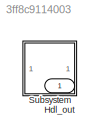
MODEL slx_3ff8c9114003
KIND model
CONFIG AbsTol = auto
CONFIG EnableMultiTasking = off
CONFIG FixedStep = auto
CONFIG MaxStep = auto
CONFIG MinStep = auto
CONFIG RelTol = 1e-3
CONFIG SampleTimeConstraint = Unconstrained
CONFIG SolverName = VariableStepAuto
CONFIG StartTime = 0.0
CONFIG StopTime = 10.0
BLOCK [Outport] Hdl_out
  OutDataTypeStr = uint8
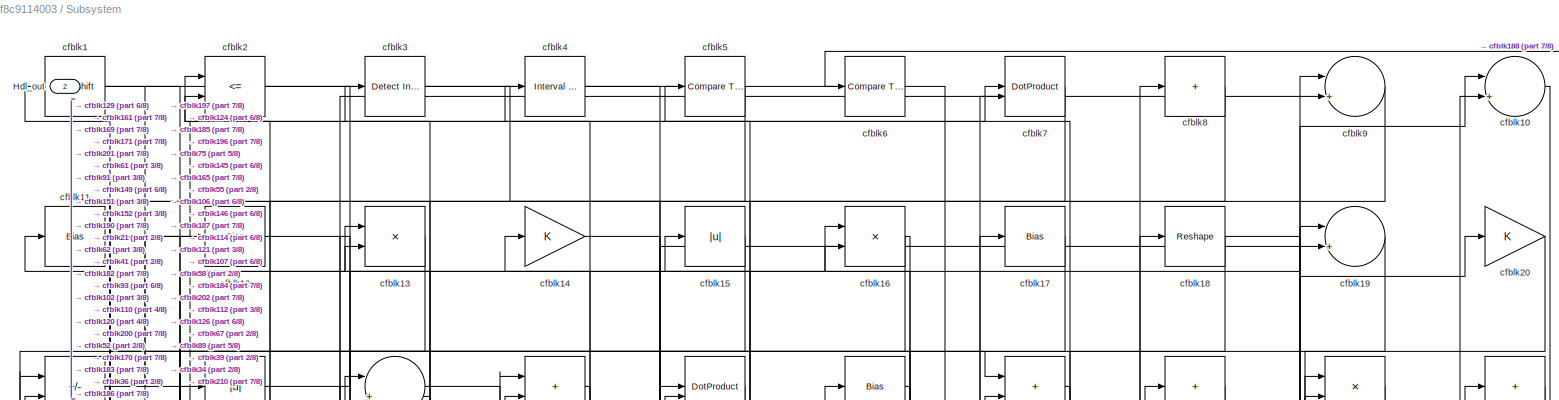
[diagram: Subsystem - part 1/8, full width, top band]
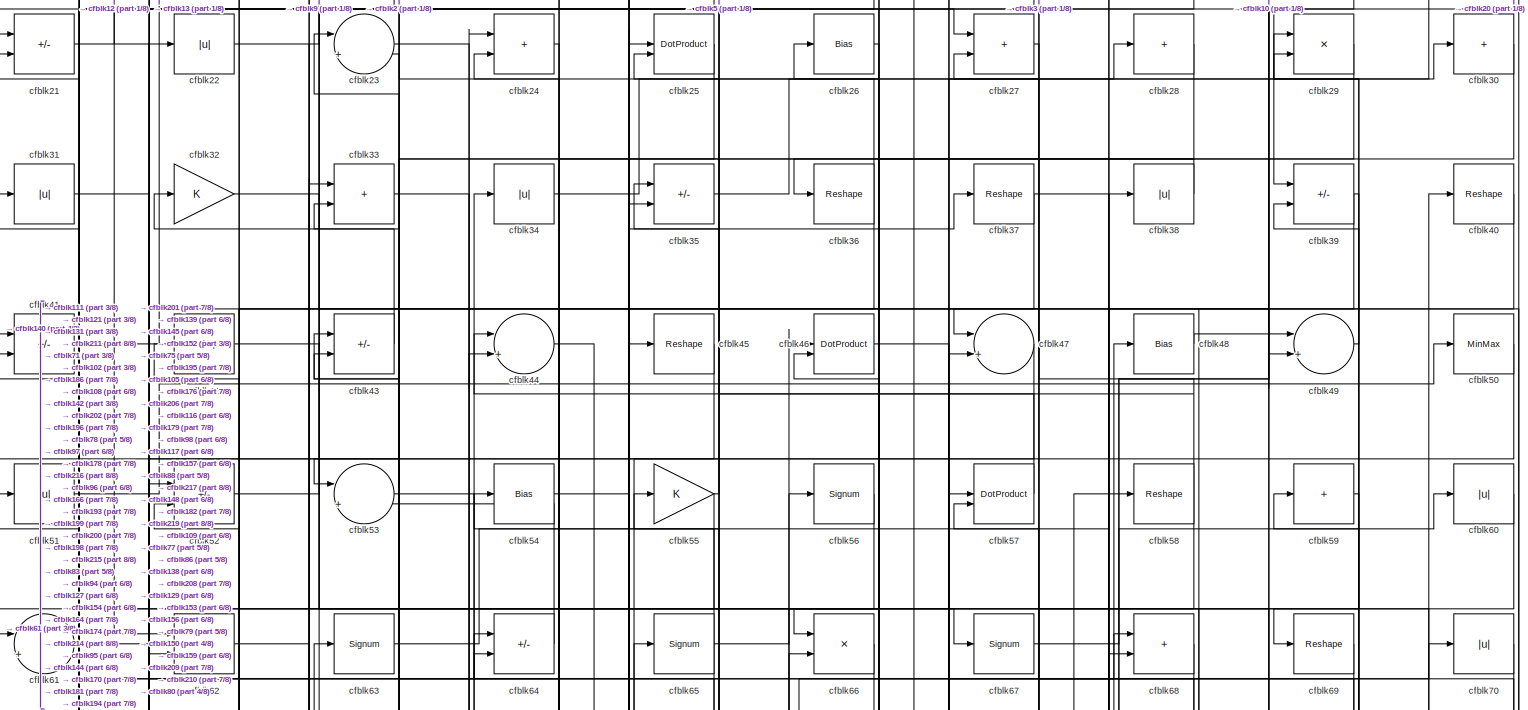
[diagram: Subsystem - part 2/8, full width, top band]
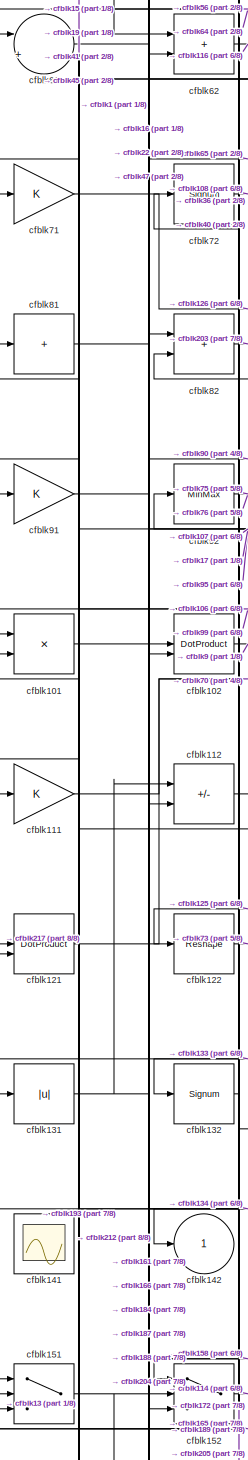
[diagram: Subsystem - part 3/8, middle left region]
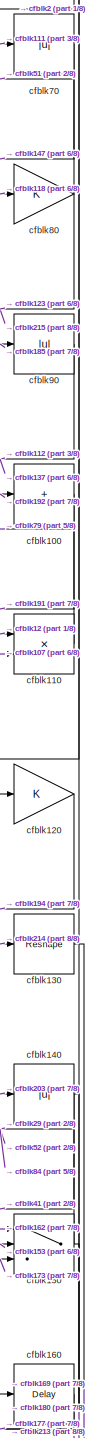
[diagram: Subsystem - part 4/8, middle right region]
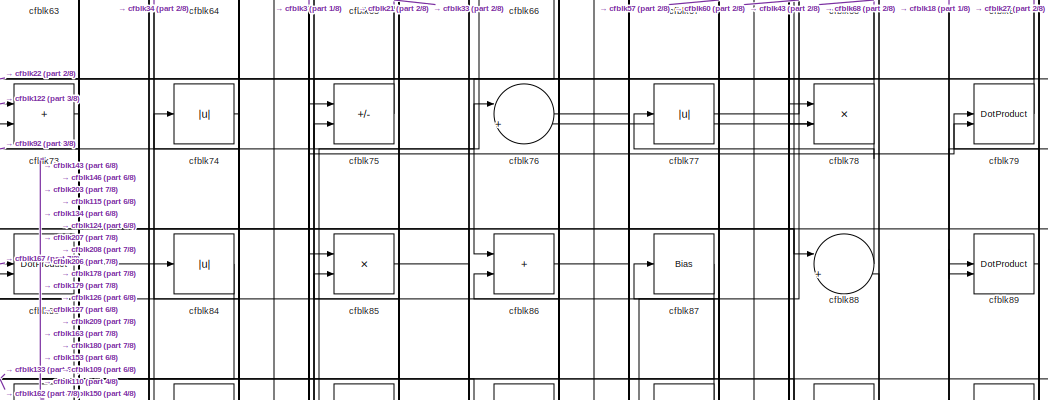
[diagram: Subsystem - part 5/8, central region]
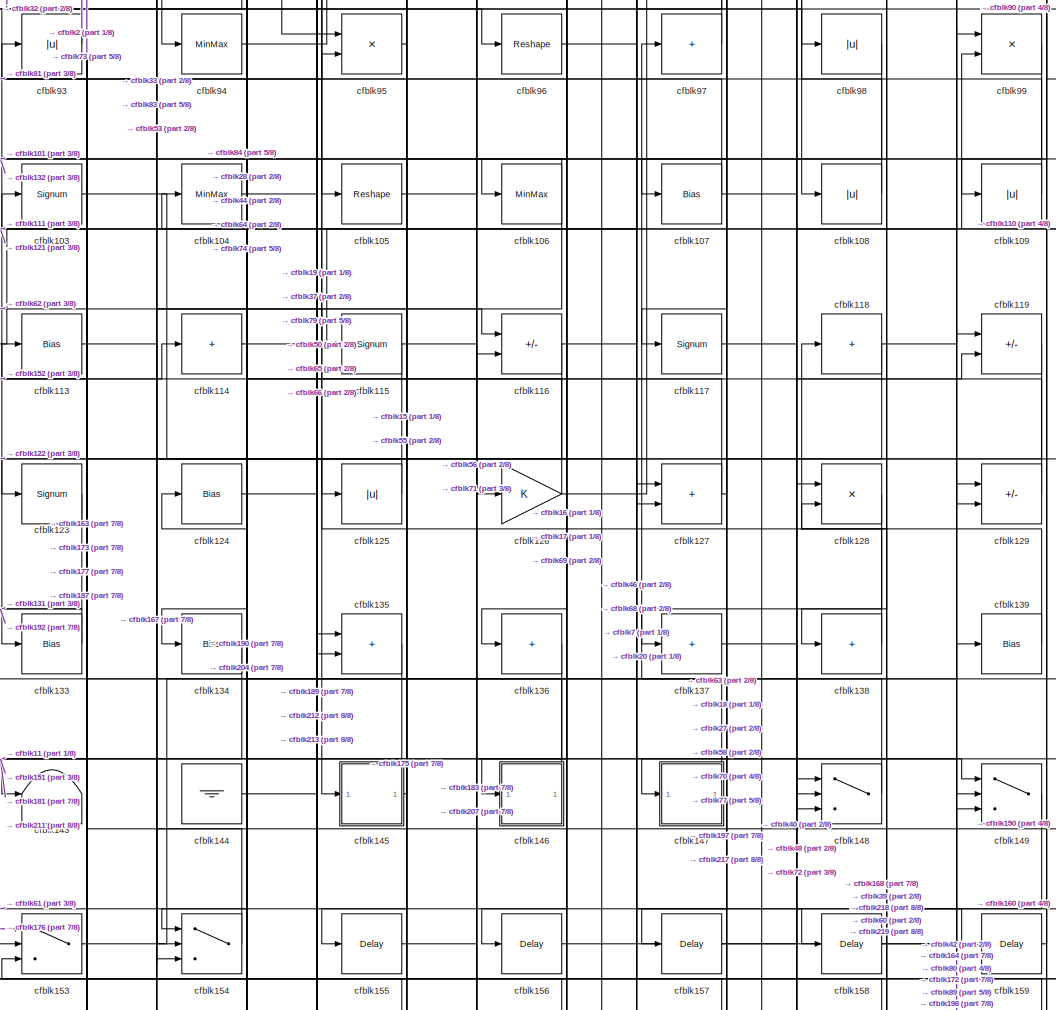
[diagram: Subsystem - part 6/8, central region]
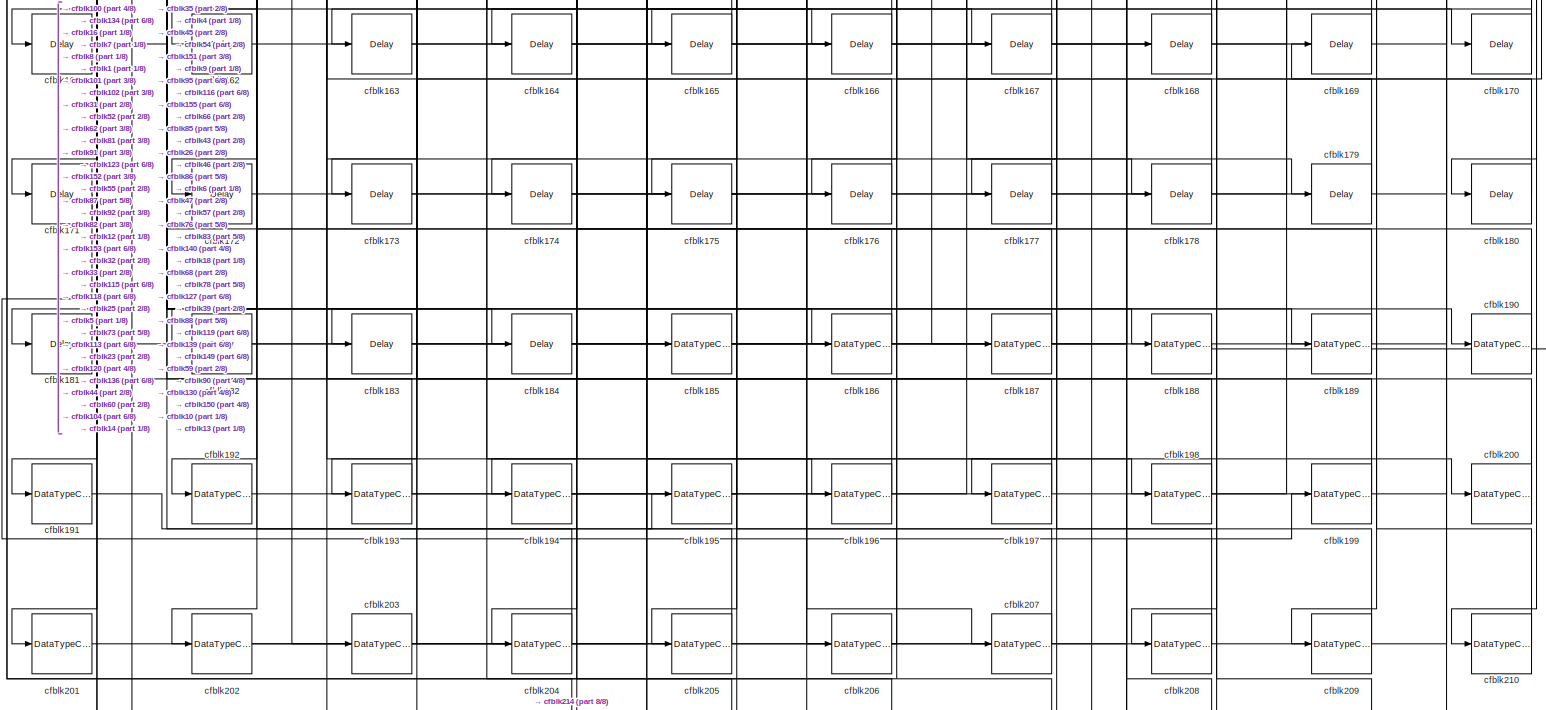
[diagram: Subsystem - part 7/8, full width, bottom band]
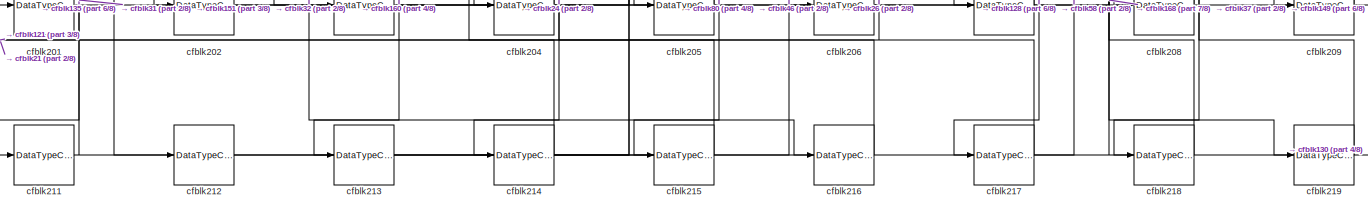
[diagram: Subsystem - part 8/8, full width, bottom band]
BLOCK [SubSystem] Subsystem
BLOCK [Outport] Subsystem/Hdl_out
  OutDataTypeStr = uint8
  Port = 2
BLOCK [ArithShift] Subsystem/cfblk1
  BitShiftNumber = 8
  InputPortMap = u0
BLOCK [Sum] Subsystem/cfblk10
  Inputs = |++
  OutDataTypeStr = uint8
BLOCK [Sum] Subsystem/cfblk100
  IconShape = rectangular
  Inputs = +
  OutDataTypeStr = uint8
BLOCK [Product] Subsystem/cfblk101
  Inputs = */
  OutDataTypeStr = uint8
  RndMeth = Zero
  SaturateOnIntegerOverflow = on
BLOCK [DotProduct] Subsystem/cfblk102
  OutDataTypeStr = uint8
BLOCK [Signum] Subsystem/cfblk103
BLOCK [MinMax] Subsystem/cfblk104
  OutDataTypeStr = uint8
BLOCK [Reshape] Subsystem/cfblk105
BLOCK [MinMax] Subsystem/cfblk106
  OutDataTypeStr = uint8
BLOCK [Bias] Subsystem/cfblk107
  Bias = 0.0
  SaturateOnIntegerOverflow = off
BLOCK [Abs] Subsystem/cfblk108
  OutDataTypeStr = uint8
  SaturateOnIntegerOverflow = off
BLOCK [Abs] Subsystem/cfblk109
  OutDataTypeStr = uint8
  SaturateOnIntegerOverflow = off
BLOCK [Bias] Subsystem/cfblk11
  Bias = 0.0
  SaturateOnIntegerOverflow = off
BLOCK [Product] Subsystem/cfblk110
  Inputs = */
  OutDataTypeStr = uint8
  RndMeth = Zero
  SaturateOnIntegerOverflow = on
BLOCK [Gain] Subsystem/cfblk111
  OutDataTypeStr = uint8
BLOCK [Sum] Subsystem/cfblk112
  IconShape = rectangular
  Inputs = +-
  OutDataTypeStr = uint8
BLOCK [Bias] Subsystem/cfblk113
  Bias = 0.0
  SaturateOnIntegerOverflow = off
BLOCK [Sum] Subsystem/cfblk114
  IconShape = rectangular
  Inputs = +
  OutDataTypeStr = uint8
BLOCK [Signum] Subsystem/cfblk115
BLOCK [Sum] Subsystem/cfblk116
  IconShape = rectangular
  Inputs = +-
  OutDataTypeStr = uint8
BLOCK [Signum] Subsystem/cfblk117
BLOCK [Sum] Subsystem/cfblk118
  IconShape = rectangular
  Inputs = +
  OutDataTypeStr = uint8
BLOCK [Sum] Subsystem/cfblk119
  IconShape = rectangular
  Inputs = +-
  OutDataTypeStr = uint8
BLOCK [Bias] Subsystem/cfblk12
  Bias = 0.0
  SaturateOnIntegerOverflow = off
BLOCK [Gain] Subsystem/cfblk120
  OutDataTypeStr = uint8
BLOCK [DotProduct] Subsystem/cfblk121
  OutDataTypeStr = uint8
BLOCK [Reshape] Subsystem/cfblk122
BLOCK [Signum] Subsystem/cfblk123
BLOCK [Bias] Subsystem/cfblk124
  Bias = 0.0
  SaturateOnIntegerOverflow = off
BLOCK [Abs] Subsystem/cfblk125
  OutDataTypeStr = uint8
  SaturateOnIntegerOverflow = off
BLOCK [Gain] Subsystem/cfblk126
  OutDataTypeStr = uint8
BLOCK [Sum] Subsystem/cfblk127
  IconShape = rectangular
  OutDataTypeStr = uint8
BLOCK [Product] Subsystem/cfblk128
  Inputs = */
  OutDataTypeStr = uint8
  RndMeth = Zero
  SaturateOnIntegerOverflow = on
BLOCK [Sum] Subsystem/cfblk129
  IconShape = rectangular
  Inputs = +-
  OutDataTypeStr = uint8
BLOCK [Product] Subsystem/cfblk13
  Inputs = */
  OutDataTypeStr = uint8
  RndMeth = Zero
  SaturateOnIntegerOverflow = on
BLOCK [Reshape] Subsystem/cfblk130
BLOCK [Abs] Subsystem/cfblk131
  OutDataTypeStr = uint8
  SaturateOnIntegerOverflow = off
BLOCK [Signum] Subsystem/cfblk132
BLOCK [Bias] Subsystem/cfblk133
  Bias = 0.0
  SaturateOnIntegerOverflow = off
BLOCK [Bias] Subsystem/cfblk134
  Bias = 0.0
  SaturateOnIntegerOverflow = off
BLOCK [Sum] Subsystem/cfblk135
  IconShape = rectangular
  OutDataTypeStr = uint8
BLOCK [Sum] Subsystem/cfblk136
  IconShape = rectangular
  Inputs = +
  OutDataTypeStr = uint8
BLOCK [Sum] Subsystem/cfblk137
  IconShape = rectangular
  Inputs = +
  OutDataTypeStr = uint8
BLOCK [Sum] Subsystem/cfblk138
  IconShape = rectangular
  Inputs = +
  OutDataTypeStr = uint8
BLOCK [Bias] Subsystem/cfblk139
  Bias = 0.0
  SaturateOnIntegerOverflow = off
BLOCK [Gain] Subsystem/cfblk14
  OutDataTypeStr = uint8
BLOCK [Abs] Subsystem/cfblk140
  OutDataTypeStr = uint8
  SaturateOnIntegerOverflow = off
BLOCK [Scope] Subsystem/cfblk141
  Floating = on
  NumInputPorts = 1
  ScopeSpecificationString = Simulink.scopes.TimeScopeBlockCfg('CurrentConfiguration', extmgr.ConfigurationSet(extmgr.Configuration('Core','General UI',true,'FigureColor',[0.156862745098039 0.156862745098039 0.156862745098039]),extmgr.Configuration('Core','Source UI',true),extmgr.Configuration('Sources','WiredSimulink',true,'DataLoggingSaveFormat','StructureWithTime','DataLoggingLimitDataPoints',true,'DataLoggingDecimation','...<+2674ch>
BLOCK [Outport] Subsystem/cfblk142
  OutDataTypeStr = uint8
  VectorParamsAs1DForOutWhenUnconnected = off
BLOCK [Terminator] Subsystem/cfblk143
BLOCK [Ground] Subsystem/cfblk144
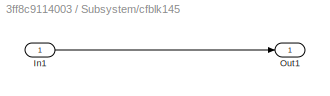
BLOCK [SubSystem] Subsystem/cfblk145
  LibrarySourceBlock = hdlsllib/Ports &\nSubsystems/Subsystem
BLOCK [Inport] Subsystem/cfblk145/In1
BLOCK [Outport] Subsystem/cfblk145/Out1
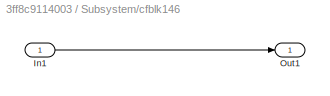
BLOCK [SubSystem] Subsystem/cfblk146
  LibrarySourceBlock = hdlsllib/Ports &\nSubsystems/Subsystem
BLOCK [Inport] Subsystem/cfblk146/In1
BLOCK [Outport] Subsystem/cfblk146/Out1
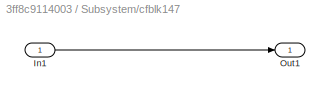
BLOCK [SubSystem] Subsystem/cfblk147
  LibrarySourceBlock = hdlsllib/Ports &\nSubsystems/Subsystem
BLOCK [Inport] Subsystem/cfblk147/In1
BLOCK [Outport] Subsystem/cfblk147/Out1
BLOCK [Switch] Subsystem/cfblk148
  InputSameDT = off
  OutDataTypeStr = uint8
  SaturateOnIntegerOverflow = off
BLOCK [Switch] Subsystem/cfblk149
  InputSameDT = off
  OutDataTypeStr = uint8
  SaturateOnIntegerOverflow = off
BLOCK [Abs] Subsystem/cfblk15
  OutDataTypeStr = uint8
  SaturateOnIntegerOverflow = off
BLOCK [Switch] Subsystem/cfblk150
  InputSameDT = off
  OutDataTypeStr = uint8
  SaturateOnIntegerOverflow = off
BLOCK [Switch] Subsystem/cfblk151
  InputSameDT = off
  OutDataTypeStr = uint8
  SaturateOnIntegerOverflow = off
BLOCK [Switch] Subsystem/cfblk152
  InputSameDT = off
  OutDataTypeStr = uint8
  SaturateOnIntegerOverflow = off
BLOCK [Switch] Subsystem/cfblk153
  InputSameDT = off
  OutDataTypeStr = uint8
  SaturateOnIntegerOverflow = off
BLOCK [Switch] Subsystem/cfblk154
  InputSameDT = off
  OutDataTypeStr = uint8
  SaturateOnIntegerOverflow = off
BLOCK [Delay] Subsystem/cfblk155
  InputPortMap = u0
  SampleTime = 1
BLOCK [Delay] Subsystem/cfblk156
  InputPortMap = u0
  SampleTime = 1
BLOCK [Delay] Subsystem/cfblk157
  InputPortMap = u0
  SampleTime = 1
BLOCK [Delay] Subsystem/cfblk158
  InputPortMap = u0
  SampleTime = 1
BLOCK [Delay] Subsystem/cfblk159
  InputPortMap = u0
  SampleTime = 1
BLOCK [Product] Subsystem/cfblk16
  Inputs = */
  OutDataTypeStr = uint8
  RndMeth = Zero
  SaturateOnIntegerOverflow = on
BLOCK [Delay] Subsystem/cfblk160
  InputPortMap = u0
  SampleTime = 1
BLOCK [Delay] Subsystem/cfblk161
  InputPortMap = u0
  SampleTime = 1
BLOCK [Delay] Subsystem/cfblk162
  InputPortMap = u0
  SampleTime = 1
BLOCK [Delay] Subsystem/cfblk163
  InputPortMap = u0
  SampleTime = 1
BLOCK [Delay] Subsystem/cfblk164
  InputPortMap = u0
  SampleTime = 1
BLOCK [Delay] Subsystem/cfblk165
  InputPortMap = u0
  SampleTime = 1
BLOCK [Delay] Subsystem/cfblk166
  InputPortMap = u0
  SampleTime = 1
BLOCK [Delay] Subsystem/cfblk167
  InputPortMap = u0
  SampleTime = 1
BLOCK [Delay] Subsystem/cfblk168
  InputPortMap = u0
  SampleTime = 1
BLOCK [Delay] Subsystem/cfblk169
  InputPortMap = u0
  SampleTime = 1
BLOCK [Bias] Subsystem/cfblk17
  Bias = 0.0
  SaturateOnIntegerOverflow = off
BLOCK [Delay] Subsystem/cfblk170
  InputPortMap = u0
  SampleTime = 1
BLOCK [Delay] Subsystem/cfblk171
  InputPortMap = u0
  SampleTime = 1
BLOCK [Delay] Subsystem/cfblk172
  InputPortMap = u0
  SampleTime = 1
BLOCK [Delay] Subsystem/cfblk173
  InputPortMap = u0
  SampleTime = 1
BLOCK [Delay] Subsystem/cfblk174
  InputPortMap = u0
  SampleTime = 1
BLOCK [Delay] Subsystem/cfblk175
  InputPortMap = u0
  SampleTime = 1
BLOCK [Delay] Subsystem/cfblk176
  InputPortMap = u0
  SampleTime = 1
BLOCK [Delay] Subsystem/cfblk177
  InputPortMap = u0
  SampleTime = 1
BLOCK [Delay] Subsystem/cfblk178
  InputPortMap = u0
  SampleTime = 1
BLOCK [Delay] Subsystem/cfblk179
  InputPortMap = u0
  SampleTime = 1
BLOCK [Reshape] Subsystem/cfblk18
BLOCK [Delay] Subsystem/cfblk180
  InputPortMap = u0
  SampleTime = 1
BLOCK [Delay] Subsystem/cfblk181
  InputPortMap = u0
  SampleTime = 1
BLOCK [Delay] Subsystem/cfblk182
  InputPortMap = u0
  SampleTime = 1
BLOCK [Delay] Subsystem/cfblk183
  InputPortMap = u0
  SampleTime = 1
BLOCK [Delay] Subsystem/cfblk184
  InputPortMap = u0
  SampleTime = 1
BLOCK [DataTypeConversion] Subsystem/cfblk185
  OutDataTypeStr = uint8
  RndMeth = Floor
  SaturateOnIntegerOverflow = off
BLOCK [DataTypeConversion] Subsystem/cfblk186
  OutDataTypeStr = uint8
  RndMeth = Floor
  SaturateOnIntegerOverflow = off
BLOCK [DataTypeConversion] Subsystem/cfblk187
  OutDataTypeStr = uint8
  RndMeth = Floor
  SaturateOnIntegerOverflow = off
BLOCK [DataTypeConversion] Subsystem/cfblk188
  OutDataTypeStr = uint8
  RndMeth = Floor
  SaturateOnIntegerOverflow = off
BLOCK [DataTypeConversion] Subsystem/cfblk189
  OutDataTypeStr = uint8
  RndMeth = Floor
  SaturateOnIntegerOverflow = off
BLOCK [Sum] Subsystem/cfblk19
  Inputs = |++
  OutDataTypeStr = uint8
BLOCK [DataTypeConversion] Subsystem/cfblk190
  OutDataTypeStr = uint8
  RndMeth = Floor
  SaturateOnIntegerOverflow = off
BLOCK [DataTypeConversion] Subsystem/cfblk191
  OutDataTypeStr = uint8
  RndMeth = Floor
  SaturateOnIntegerOverflow = off
BLOCK [DataTypeConversion] Subsystem/cfblk192
  OutDataTypeStr = uint8
  RndMeth = Floor
  SaturateOnIntegerOverflow = off
BLOCK [DataTypeConversion] Subsystem/cfblk193
  OutDataTypeStr = uint8
  RndMeth = Floor
  SaturateOnIntegerOverflow = off
BLOCK [DataTypeConversion] Subsystem/cfblk194
  OutDataTypeStr = uint8
  RndMeth = Floor
  SaturateOnIntegerOverflow = off
BLOCK [DataTypeConversion] Subsystem/cfblk195
  OutDataTypeStr = uint8
  RndMeth = Floor
  SaturateOnIntegerOverflow = off
BLOCK [DataTypeConversion] Subsystem/cfblk196
  OutDataTypeStr = uint8
  RndMeth = Floor
  SaturateOnIntegerOverflow = off
BLOCK [DataTypeConversion] Subsystem/cfblk197
  OutDataTypeStr = uint8
  RndMeth = Floor
  SaturateOnIntegerOverflow = off
BLOCK [DataTypeConversion] Subsystem/cfblk198
  OutDataTypeStr = uint8
  RndMeth = Floor
  SaturateOnIntegerOverflow = off
BLOCK [DataTypeConversion] Subsystem/cfblk199
  OutDataTypeStr = uint8
  RndMeth = Floor
  SaturateOnIntegerOverflow = off
BLOCK [RelationalOperator] Subsystem/cfblk2
  InputSameDT = off
  Operator = <=
  OutDataTypeStr = boolean
BLOCK [Gain] Subsystem/cfblk20
  OutDataTypeStr = uint8
BLOCK [DataTypeConversion] Subsystem/cfblk200
  OutDataTypeStr = uint8
  RndMeth = Floor
  SaturateOnIntegerOverflow = off
BLOCK [DataTypeConversion] Subsystem/cfblk201
  OutDataTypeStr = uint8
  RndMeth = Floor
  SaturateOnIntegerOverflow = off
BLOCK [DataTypeConversion] Subsystem/cfblk202
  OutDataTypeStr = uint8
  RndMeth = Floor
  SaturateOnIntegerOverflow = off
BLOCK [DataTypeConversion] Subsystem/cfblk203
  OutDataTypeStr = uint8
  RndMeth = Floor
  SaturateOnIntegerOverflow = off
BLOCK [DataTypeConversion] Subsystem/cfblk204
  OutDataTypeStr = uint8
  RndMeth = Floor
  SaturateOnIntegerOverflow = off
BLOCK [DataTypeConversion] Subsystem/cfblk205
  OutDataTypeStr = uint8
  RndMeth = Floor
  SaturateOnIntegerOverflow = off
BLOCK [DataTypeConversion] Subsystem/cfblk206
  OutDataTypeStr = uint8
  RndMeth = Floor
  SaturateOnIntegerOverflow = off
BLOCK [DataTypeConversion] Subsystem/cfblk207
  OutDataTypeStr = uint8
  RndMeth = Floor
  SaturateOnIntegerOverflow = off
BLOCK [DataTypeConversion] Subsystem/cfblk208
  OutDataTypeStr = uint8
  RndMeth = Floor
  SaturateOnIntegerOverflow = off
BLOCK [DataTypeConversion] Subsystem/cfblk209
  OutDataTypeStr = uint8
  RndMeth = Floor
  SaturateOnIntegerOverflow = off
BLOCK [Sum] Subsystem/cfblk21
  IconShape = rectangular
  Inputs = +-
  OutDataTypeStr = uint8
BLOCK [DataTypeConversion] Subsystem/cfblk210
  OutDataTypeStr = uint8
  RndMeth = Floor
  SaturateOnIntegerOverflow = off
BLOCK [DataTypeConversion] Subsystem/cfblk211
  OutDataTypeStr = uint8
  RndMeth = Floor
  SaturateOnIntegerOverflow = off
BLOCK [DataTypeConversion] Subsystem/cfblk212
  OutDataTypeStr = uint8
  RndMeth = Floor
  SaturateOnIntegerOverflow = off
BLOCK [DataTypeConversion] Subsystem/cfblk213
  OutDataTypeStr = uint8
  RndMeth = Floor
  SaturateOnIntegerOverflow = off
BLOCK [DataTypeConversion] Subsystem/cfblk214
  OutDataTypeStr = uint8
  RndMeth = Floor
  SaturateOnIntegerOverflow = off
BLOCK [DataTypeConversion] Subsystem/cfblk215
  OutDataTypeStr = uint8
  RndMeth = Floor
  SaturateOnIntegerOverflow = off
BLOCK [DataTypeConversion] Subsystem/cfblk216
  OutDataTypeStr = uint8
  RndMeth = Floor
  SaturateOnIntegerOverflow = off
BLOCK [DataTypeConversion] Subsystem/cfblk217
  OutDataTypeStr = uint8
  RndMeth = Floor
  SaturateOnIntegerOverflow = off
BLOCK [DataTypeConversion] Subsystem/cfblk218
  OutDataTypeStr = uint8
  RndMeth = Floor
  SaturateOnIntegerOverflow = off
BLOCK [DataTypeConversion] Subsystem/cfblk219
  OutDataTypeStr = uint8
  RndMeth = Floor
  SaturateOnIntegerOverflow = off
BLOCK [Abs] Subsystem/cfblk22
  OutDataTypeStr = uint8
  SaturateOnIntegerOverflow = off
BLOCK [Sum] Subsystem/cfblk23
  Inputs = |++
  OutDataTypeStr = uint8
BLOCK [Sum] Subsystem/cfblk24
  IconShape = rectangular
  OutDataTypeStr = uint8
BLOCK [DotProduct] Subsystem/cfblk25
  OutDataTypeStr = uint8
BLOCK [Bias] Subsystem/cfblk26
  Bias = 0.0
  SaturateOnIntegerOverflow = off
BLOCK [Sum] Subsystem/cfblk27
  IconShape = rectangular
  OutDataTypeStr = uint8
BLOCK [Sum] Subsystem/cfblk28
  IconShape = rectangular
  Inputs = +
  OutDataTypeStr = uint8
BLOCK [Product] Subsystem/cfblk29
  Inputs = */
  OutDataTypeStr = uint8
  RndMeth = Zero
  SaturateOnIntegerOverflow = on
BLOCK [Reference] Subsystem/cfblk3  REF=simulink/Logic and Bit
Operations/Detect
Increase
  LibrarySourceBlock = hdlsllib/Logic and Bit\nOperations/Detect\nIncrease
  SourceBlock = simulink/Logic and Bit\nOperations/Detect\nIncrease
  SourceType = Detect Increase
BLOCK [Sum] Subsystem/cfblk30
  IconShape = rectangular
  Inputs = +
  OutDataTypeStr = uint8
BLOCK [Abs] Subsystem/cfblk31
  OutDataTypeStr = uint8
  SaturateOnIntegerOverflow = off
BLOCK [Gain] Subsystem/cfblk32
  OutDataTypeStr = uint8
BLOCK [Sum] Subsystem/cfblk33
  IconShape = rectangular
  OutDataTypeStr = uint8
BLOCK [Abs] Subsystem/cfblk34
  OutDataTypeStr = uint8
  SaturateOnIntegerOverflow = off
BLOCK [Sum] Subsystem/cfblk35
  IconShape = rectangular
  Inputs = +-
  OutDataTypeStr = uint8
BLOCK [Reshape] Subsystem/cfblk36
BLOCK [Reshape] Subsystem/cfblk37
BLOCK [Abs] Subsystem/cfblk38
  OutDataTypeStr = uint8
  SaturateOnIntegerOverflow = off
BLOCK [Sum] Subsystem/cfblk39
  IconShape = rectangular
  Inputs = +-
  OutDataTypeStr = uint8
BLOCK [Reference] Subsystem/cfblk4  REF=hdlsllib/Logic and Bit
Operations/Interval Test
  SourceBlock = hdlsllib/Logic and Bit\nOperations/Interval Test
  SourceType = Interval Test
BLOCK [Reshape] Subsystem/cfblk40
BLOCK [Sum] Subsystem/cfblk41
  IconShape = rectangular
  Inputs = +-
  OutDataTypeStr = uint8
BLOCK [Reshape] Subsystem/cfblk42
BLOCK [Sum] Subsystem/cfblk43
  IconShape = rectangular
  Inputs = +-
  OutDataTypeStr = uint8
BLOCK [Sum] Subsystem/cfblk44
  Inputs = |++
  OutDataTypeStr = uint8
BLOCK [Reshape] Subsystem/cfblk45
BLOCK [DotProduct] Subsystem/cfblk46
  OutDataTypeStr = uint8
BLOCK [Sum] Subsystem/cfblk47
  Inputs = |++
  OutDataTypeStr = uint8
BLOCK [Bias] Subsystem/cfblk48
  Bias = 0.0
  SaturateOnIntegerOverflow = off
BLOCK [Sum] Subsystem/cfblk49
  Inputs = |++
  OutDataTypeStr = uint8
BLOCK [Reference] Subsystem/cfblk5  REF=hdlsllib/Logic and Bit
Operations/Compare
To Constant
  SourceBlock = hdlsllib/Logic and Bit\nOperations/Compare\nTo Constant
  SourceType = Compare To Constant
BLOCK [MinMax] Subsystem/cfblk50
  OutDataTypeStr = uint8
BLOCK [Abs] Subsystem/cfblk51
  OutDataTypeStr = uint8
  SaturateOnIntegerOverflow = off
BLOCK [Sum] Subsystem/cfblk52
  IconShape = rectangular
  Inputs = +-
  OutDataTypeStr = uint8
BLOCK [Sum] Subsystem/cfblk53
  Inputs = |++
  OutDataTypeStr = uint8
BLOCK [Bias] Subsystem/cfblk54
  Bias = 0.0
  SaturateOnIntegerOverflow = off
BLOCK [Gain] Subsystem/cfblk55
  OutDataTypeStr = uint8
BLOCK [Signum] Subsystem/cfblk56
BLOCK [DotProduct] Subsystem/cfblk57
  OutDataTypeStr = uint8
BLOCK [Reshape] Subsystem/cfblk58
BLOCK [Sum] Subsystem/cfblk59
  IconShape = rectangular
  Inputs = +
  OutDataTypeStr = uint8
BLOCK [Reference] Subsystem/cfblk6  REF=hdlsllib/Logic and Bit
Operations/Compare
To Constant
  SourceBlock = hdlsllib/Logic and Bit\nOperations/Compare\nTo Constant
  SourceType = Compare To Constant
BLOCK [Abs] Subsystem/cfblk60
  OutDataTypeStr = uint8
  SaturateOnIntegerOverflow = off
BLOCK [Sum] Subsystem/cfblk61
  Inputs = |++
  OutDataTypeStr = uint8
BLOCK [Sum] Subsystem/cfblk62
  IconShape = rectangular
  OutDataTypeStr = uint8
BLOCK [Signum] Subsystem/cfblk63
BLOCK [Sum] Subsystem/cfblk64
  IconShape = rectangular
  Inputs = +-
  OutDataTypeStr = uint8
BLOCK [Signum] Subsystem/cfblk65
BLOCK [Product] Subsystem/cfblk66
  Inputs = */
  OutDataTypeStr = uint8
  RndMeth = Zero
  SaturateOnIntegerOverflow = on
BLOCK [Signum] Subsystem/cfblk67
BLOCK [Sum] Subsystem/cfblk68
  IconShape = rectangular
  OutDataTypeStr = uint8
BLOCK [Reshape] Subsystem/cfblk69
BLOCK [DotProduct] Subsystem/cfblk7
  OutDataTypeStr = uint8
BLOCK [Abs] Subsystem/cfblk70
  OutDataTypeStr = uint8
  SaturateOnIntegerOverflow = off
BLOCK [Gain] Subsystem/cfblk71
  OutDataTypeStr = uint8
BLOCK [Signum] Subsystem/cfblk72
BLOCK [Sum] Subsystem/cfblk73
  IconShape = rectangular
  OutDataTypeStr = uint8
BLOCK [Abs] Subsystem/cfblk74
  OutDataTypeStr = uint8
  SaturateOnIntegerOverflow = off
BLOCK [Sum] Subsystem/cfblk75
  IconShape = rectangular
  Inputs = +-
  OutDataTypeStr = uint8
BLOCK [Sum] Subsystem/cfblk76
  Inputs = |++
  OutDataTypeStr = uint8
BLOCK [Abs] Subsystem/cfblk77
  OutDataTypeStr = uint8
  SaturateOnIntegerOverflow = off
BLOCK [Product] Subsystem/cfblk78
  Inputs = */
  OutDataTypeStr = uint8
  RndMeth = Zero
  SaturateOnIntegerOverflow = on
BLOCK [DotProduct] Subsystem/cfblk79
  OutDataTypeStr = uint8
BLOCK [Sum] Subsystem/cfblk8
  IconShape = rectangular
  Inputs = +
  OutDataTypeStr = uint8
BLOCK [Gain] Subsystem/cfblk80
  OutDataTypeStr = uint8
BLOCK [Sum] Subsystem/cfblk81
  IconShape = rectangular
  Inputs = +
  OutDataTypeStr = uint8
BLOCK [Sum] Subsystem/cfblk82
  IconShape = rectangular
  OutDataTypeStr = uint8
BLOCK [DotProduct] Subsystem/cfblk83
  OutDataTypeStr = uint8
BLOCK [Abs] Subsystem/cfblk84
  OutDataTypeStr = uint8
  SaturateOnIntegerOverflow = off
BLOCK [Product] Subsystem/cfblk85
  Inputs = */
  OutDataTypeStr = uint8
  RndMeth = Zero
  SaturateOnIntegerOverflow = on
BLOCK [Sum] Subsystem/cfblk86
  IconShape = rectangular
  OutDataTypeStr = uint8
BLOCK [Bias] Subsystem/cfblk87
  Bias = 0.0
  SaturateOnIntegerOverflow = off
BLOCK [Sum] Subsystem/cfblk88
  Inputs = |++
  OutDataTypeStr = uint8
BLOCK [DotProduct] Subsystem/cfblk89
  OutDataTypeStr = uint8
BLOCK [Sum] Subsystem/cfblk9
  Inputs = |++
  OutDataTypeStr = uint8
BLOCK [Abs] Subsystem/cfblk90
  OutDataTypeStr = uint8
  SaturateOnIntegerOverflow = off
BLOCK [Gain] Subsystem/cfblk91
  OutDataTypeStr = uint8
BLOCK [MinMax] Subsystem/cfblk92
  OutDataTypeStr = uint8
BLOCK [Abs] Subsystem/cfblk93
  OutDataTypeStr = uint8
  SaturateOnIntegerOverflow = off
BLOCK [MinMax] Subsystem/cfblk94
  OutDataTypeStr = uint8
BLOCK [Product] Subsystem/cfblk95
  Inputs = */
  OutDataTypeStr = uint8
  RndMeth = Zero
  SaturateOnIntegerOverflow = on
BLOCK [Reshape] Subsystem/cfblk96
BLOCK [Sum] Subsystem/cfblk97
  IconShape = rectangular
  Inputs = +
  OutDataTypeStr = uint8
BLOCK [Abs] Subsystem/cfblk98
  OutDataTypeStr = uint8
  SaturateOnIntegerOverflow = off
BLOCK [Product] Subsystem/cfblk99
  Inputs = */
  OutDataTypeStr = uint8
  RndMeth = Zero
  SaturateOnIntegerOverflow = on
LINE Subsystem/cfblk100:1 -> Subsystem/cfblk191:1
LINE Subsystem/cfblk101:1 -> Subsystem/cfblk166:1
LINE Subsystem/cfblk102:1 -> Subsystem/cfblk9:2
LINE Subsystem/cfblk103:1 -> Subsystem/cfblk125:1
LINE Subsystem/cfblk104:1 -> Subsystem/cfblk189:1
LINE Subsystem/cfblk105:1 -> Subsystem/cfblk56:1
NET Subsystem/cfblk106:1 -> Subsystem/cfblk101:1, Subsystem/cfblk154:2
NET Subsystem/cfblk107:1 -> Subsystem/cfblk110:2, Subsystem/cfblk16:1, Subsystem/cfblk81:1
LINE Subsystem/cfblk108:1 -> Subsystem/cfblk42:1
LINE Subsystem/cfblk109:1 -> Subsystem/cfblk48:1
LINE Subsystem/cfblk10:1 -> Subsystem/cfblk210:1
LINE Subsystem/cfblk110:1 -> Subsystem/cfblk79:1
NET Subsystem/cfblk111:1 -> Subsystem/cfblk70:1, Subsystem/cfblk99:2
LINE Subsystem/cfblk112:1 -> Subsystem/cfblk19:1
LINE Subsystem/cfblk113:1 -> Subsystem/cfblk167:1
LINE Subsystem/cfblk114:1 -> Subsystem/cfblk7:2
NET Subsystem/cfblk115:1 -> Subsystem/cfblk149:1, Subsystem/cfblk163:1
NET Subsystem/cfblk116:1 -> Subsystem/cfblk154:3, Subsystem/cfblk28:1, Subsystem/cfblk68:1
LINE Subsystem/cfblk117:1 -> Subsystem/cfblk119:2
NET Subsystem/cfblk118:1 -> Subsystem/cfblk173:1, Subsystem/cfblk80:1
LINE Subsystem/cfblk119:1 -> Subsystem/cfblk197:1
NET Subsystem/cfblk11:1 -> Subsystem/cfblk149:2, Subsystem/cfblk7:1
LINE Subsystem/cfblk120:1 -> Subsystem/cfblk194:1
NET Subsystem/cfblk121:1 -> Subsystem/cfblk17:1, Subsystem/cfblk95:2
LINE Subsystem/cfblk122:1 -> Subsystem/cfblk73:1
LINE Subsystem/cfblk123:1 -> Subsystem/cfblk192:1
NET Subsystem/cfblk124:1 -> Subsystem/cfblk19:2, Subsystem/cfblk79:2
LINE Subsystem/cfblk125:1 -> Subsystem/cfblk122:1
NET Subsystem/cfblk126:1 -> Subsystem/cfblk20:1, Subsystem/cfblk74:1
NET Subsystem/cfblk127:1 -> Subsystem/cfblk64:2, Subsystem/cfblk77:1
LINE Subsystem/cfblk128:1 -> Subsystem/cfblk217:1
NET Subsystem/cfblk129:1 -> Subsystem/cfblk11:1, Subsystem/cfblk55:1
NET Subsystem/cfblk12:1 -> Subsystem/cfblk110:1, Subsystem/cfblk200:1
LINE Subsystem/cfblk130:1 -> Subsystem/cfblk169:1
NET Subsystem/cfblk131:1 -> Subsystem/cfblk112:1, Subsystem/cfblk22:1, Subsystem/cfblk41:2
LINE Subsystem/cfblk132:1 -> Subsystem/cfblk72:1
LINE Subsystem/cfblk133:1 -> Subsystem/cfblk131:1
NET Subsystem/cfblk134:1 -> Subsystem/cfblk151:2, Subsystem/cfblk181:1
LINE Subsystem/cfblk135:1 -> Subsystem/cfblk211:1
LINE Subsystem/cfblk136:1 -> Subsystem/cfblk204:1
LINE Subsystem/cfblk137:1 -> Subsystem/cfblk160:1
LINE Subsystem/cfblk138:1 -> Subsystem/cfblk118:1
LINE Subsystem/cfblk139:1 -> Subsystem/cfblk65:1
LINE Subsystem/cfblk13:1 -> Subsystem/cfblk151:3
NET Subsystem/cfblk140:1 -> Subsystem/cfblk177:1, Subsystem/cfblk41:1
LINE Subsystem/cfblk144:1 -> Subsystem/cfblk37:1
LINE Subsystem/cfblk145/In1:1 -> Subsystem/cfblk145/Out1:1
LINE Subsystem/cfblk145:1 -> Subsystem/cfblk15:1
LINE Subsystem/cfblk146/In1:1 -> Subsystem/cfblk146/Out1:1
NET Subsystem/cfblk146:1 -> Subsystem/cfblk103:1, Subsystem/cfblk83:2
LINE Subsystem/cfblk147/In1:1 -> Subsystem/cfblk147/Out1:1
LINE Subsystem/cfblk147:1 -> Subsystem/cfblk97:1
LINE Subsystem/cfblk148:1 -> Subsystem/cfblk124:1
LINE Subsystem/cfblk149:1 -> Subsystem/cfblk218:1
LINE Subsystem/cfblk14:1 -> Subsystem/cfblk196:1
NET Subsystem/cfblk150:1 -> Subsystem/cfblk180:1, Subsystem/cfblk29:2, Subsystem/cfblk52:2, Subsystem/cfblk84:1
NET Subsystem/cfblk151:1 -> Subsystem/cfblk16:2, Subsystem/cfblk212:1
NET Subsystem/cfblk152:1 -> Subsystem/cfblk114:1, Subsystem/cfblk172:1
NET Subsystem/cfblk153:1 -> Subsystem/cfblk150:2, Subsystem/cfblk89:1
LINE Subsystem/cfblk154:1 -> Subsystem/cfblk93:1
LINE Subsystem/cfblk155:1 -> Subsystem/cfblk207:1
LINE Subsystem/cfblk156:1 -> Subsystem/cfblk129:1
LINE Subsystem/cfblk157:1 -> Subsystem/cfblk148:1
LINE Subsystem/cfblk158:1 -> Subsystem/cfblk99:1
LINE Subsystem/cfblk159:1 -> Subsystem/cfblk39:2
LINE Subsystem/cfblk15:1 -> Subsystem/cfblk91:1
LINE Subsystem/cfblk160:1 -> Subsystem/cfblk213:1
LINE Subsystem/cfblk161:1 -> Subsystem/cfblk62:2
LINE Subsystem/cfblk162:1 -> Subsystem/cfblk150:1
LINE Subsystem/cfblk163:1 -> Subsystem/cfblk78:1
LINE Subsystem/cfblk164:1 -> Subsystem/cfblk119:1
LINE Subsystem/cfblk165:1 -> Subsystem/cfblk151:1
LINE Subsystem/cfblk166:1 -> Subsystem/cfblk43:2
LINE Subsystem/cfblk167:1 -> Subsystem/cfblk83:1
LINE Subsystem/cfblk168:1 -> Subsystem/cfblk127:1
LINE Subsystem/cfblk169:1 -> Subsystem/cfblk1:1
NET Subsystem/cfblk16:1 -> Subsystem/cfblk146:1, Subsystem/cfblk161:1
LINE Subsystem/cfblk170:1 -> Subsystem/cfblk13:2
LINE Subsystem/cfblk171:1 -> Subsystem/cfblk199:1
LINE Subsystem/cfblk172:1 -> Subsystem/cfblk149:3
LINE Subsystem/cfblk173:1 -> Subsystem/cfblk150:3
LINE Subsystem/cfblk174:1 -> Subsystem/cfblk66:2
LINE Subsystem/cfblk175:1 -> Subsystem/cfblk205:1
LINE Subsystem/cfblk176:1 -> Subsystem/cfblk153:1
LINE Subsystem/cfblk177:1 -> Subsystem/cfblk153:3
LINE Subsystem/cfblk178:1 -> Subsystem/cfblk86:2
LINE Subsystem/cfblk179:1 -> Subsystem/cfblk57:1
NET Subsystem/cfblk17:1 -> Subsystem/cfblk106:1, Subsystem/cfblk152:3
LINE Subsystem/cfblk180:1 -> Subsystem/cfblk88:2
LINE Subsystem/cfblk181:1 -> Subsystem/cfblk35:2
LINE Subsystem/cfblk182:1 -> Subsystem/cfblk68:2
LINE Subsystem/cfblk183:1 -> Subsystem/cfblk116:2
LINE Subsystem/cfblk184:1 -> Subsystem/cfblk18:1
LINE Subsystem/cfblk185:1 -> Subsystem/cfblk90:1
LINE Subsystem/cfblk186:1 -> Subsystem/cfblk4:1
NET Subsystem/cfblk187:1 -> Subsystem/cfblk102:1, Subsystem/cfblk113:1
LINE Subsystem/cfblk188:1 -> Subsystem/cfblk6:1
LINE Subsystem/cfblk189:1 -> Subsystem/cfblk92:1
NET Subsystem/cfblk18:1 -> Subsystem/cfblk107:1, Subsystem/cfblk89:2
LINE Subsystem/cfblk190:1 -> Subsystem/cfblk104:1
LINE Subsystem/cfblk191:1 -> Subsystem/cfblk195:1
LINE Subsystem/cfblk192:1 -> Subsystem/cfblk100:1
NET Subsystem/cfblk193:1 -> Subsystem/cfblk101:2, Subsystem/cfblk47:2
LINE Subsystem/cfblk194:1 -> Subsystem/cfblk25:1
LINE Subsystem/cfblk195:1 -> Subsystem/cfblk25:2
LINE Subsystem/cfblk196:1 -> Subsystem/cfblk33:1
LINE Subsystem/cfblk197:1 -> Subsystem/cfblk14:1
NET Subsystem/cfblk198:1 -> Subsystem/cfblk139:1, Subsystem/cfblk52:1
LINE Subsystem/cfblk199:1 -> Subsystem/cfblk23:1
LINE Subsystem/cfblk19:1 -> Subsystem/cfblk61:2
NET Subsystem/cfblk1:1 -> Subsystem/cfblk190:1, Subsystem/cfblk62:1
LINE Subsystem/cfblk200:1 -> Subsystem/cfblk23:2
LINE Subsystem/cfblk201:1 -> Subsystem/cfblk45:1
LINE Subsystem/cfblk202:1 -> Subsystem/cfblk8:1
NET Subsystem/cfblk203:1 -> Subsystem/cfblk140:1, Subsystem/cfblk73:2
LINE Subsystem/cfblk204:1 -> Subsystem/cfblk82:1
LINE Subsystem/cfblk205:1 -> Subsystem/cfblk82:2
LINE Subsystem/cfblk206:1 -> Subsystem/cfblk46:2
LINE Subsystem/cfblk207:1 -> Subsystem/cfblk85:1
LINE Subsystem/cfblk208:1 -> Subsystem/cfblk85:2
LINE Subsystem/cfblk209:1 -> Subsystem/cfblk87:1
LINE Subsystem/cfblk20:1 -> Subsystem/cfblk39:1
LINE Subsystem/cfblk210:1 -> Subsystem/cfblk59:1
NET Subsystem/cfblk211:1 -> Subsystem/cfblk31:1, Subsystem/cfblk46:1
LINE Subsystem/cfblk212:1 -> Subsystem/cfblk135:1
LINE Subsystem/cfblk213:1 -> Subsystem/cfblk135:2
NET Subsystem/cfblk214:1 -> Subsystem/cfblk130:1, Subsystem/cfblk168:1, Subsystem/cfblk21:1
LINE Subsystem/cfblk215:1 -> Subsystem/cfblk24:1
LINE Subsystem/cfblk216:1 -> Subsystem/cfblk24:2
NET Subsystem/cfblk217:1 -> Subsystem/cfblk121:1, Subsystem/cfblk26:1, Subsystem/cfblk58:1
LINE Subsystem/cfblk218:1 -> Subsystem/cfblk128:1
LINE Subsystem/cfblk219:1 -> Subsystem/cfblk128:2
NET Subsystem/cfblk21:1 -> Subsystem/cfblk12:1, Subsystem/cfblk49:2
NET Subsystem/cfblk22:1 -> Subsystem/cfblk27:1, Subsystem/cfblk78:2
LINE Subsystem/cfblk23:1 -> Subsystem/cfblk198:1
LINE Subsystem/cfblk24:1 -> Subsystem/cfblk214:1
LINE Subsystem/cfblk25:1 -> Subsystem/cfblk193:1
LINE Subsystem/cfblk26:1 -> Subsystem/cfblk176:1
LINE Subsystem/cfblk27:1 -> Subsystem/cfblk157:1
LINE Subsystem/cfblk28:1 -> Subsystem/cfblk154:1
LINE Subsystem/cfblk29:1 -> Subsystem/cfblk53:1
LINE Subsystem/cfblk2:1 -> Subsystem/cfblk120:1
LINE Subsystem/cfblk30:1 -> Subsystem/cfblk66:1
LINE Subsystem/cfblk31:1 -> Subsystem/cfblk186:1
NET Subsystem/cfblk32:1 -> Subsystem/cfblk178:1, Subsystem/cfblk216:1, Subsystem/cfblk96:1
NET Subsystem/cfblk33:1 -> Subsystem/cfblk127:2, Subsystem/cfblk44:2
LINE Subsystem/cfblk34:1 -> Subsystem/cfblk10:2
LINE Subsystem/cfblk35:1 -> Subsystem/cfblk30:1
NET Subsystem/cfblk36:1 -> Subsystem/cfblk152:1, Subsystem/cfblk2:1
NET Subsystem/cfblk37:1 -> Subsystem/cfblk219:1, Subsystem/cfblk47:1
LINE Subsystem/cfblk38:1 -> Subsystem/cfblk36:1
NET Subsystem/cfblk39:1 -> Subsystem/cfblk148:3, Subsystem/cfblk208:1, Subsystem/cfblk69:1
LINE Subsystem/cfblk3:1 -> Subsystem/cfblk75:1
NET Subsystem/cfblk40:1 -> Subsystem/cfblk142:1, Subsystem/cfblk148:2
LINE Subsystem/cfblk41:1 -> Subsystem/cfblk13:1
LINE Subsystem/cfblk42:1 -> Subsystem/cfblk129:2
LINE Subsystem/cfblk43:1 -> Subsystem/cfblk32:1
NET Subsystem/cfblk44:1 -> Subsystem/cfblk174:1, Subsystem/cfblk95:1
NET Subsystem/cfblk45:1 -> Subsystem/cfblk121:2, Subsystem/cfblk71:1
LINE Subsystem/cfblk46:1 -> Subsystem/cfblk98:1
LINE Subsystem/cfblk47:1 -> Subsystem/cfblk102:2
LINE Subsystem/cfblk48:1 -> Subsystem/cfblk49:1
LINE Subsystem/cfblk49:1 -> Subsystem/cfblk29:1
LINE Subsystem/cfblk4:1 -> Subsystem/cfblk185:1
LINE Subsystem/cfblk50:1 -> Subsystem/cfblk145:1
LINE Subsystem/cfblk51:1 -> Subsystem/cfblk50:1
LINE Subsystem/cfblk52:1 -> Subsystem/cfblk9:1
LINE Subsystem/cfblk53:1 -> Subsystem/cfblk94:1
LINE Subsystem/cfblk54:1 -> Subsystem/cfblk170:1
NET Subsystem/cfblk55:1 -> Subsystem/cfblk202:1, Subsystem/cfblk5:1
LINE Subsystem/cfblk56:1 -> Subsystem/cfblk111:1
LINE Subsystem/cfblk57:1 -> Subsystem/cfblk35:1
NET Subsystem/cfblk58:1 -> Subsystem/cfblk117:1, Subsystem/cfblk3:1, Subsystem/cfblk44:1
LINE Subsystem/cfblk59:1 -> Subsystem/cfblk209:1
NET Subsystem/cfblk5:1 -> Subsystem/cfblk182:1, Subsystem/cfblk183:1
NET Subsystem/cfblk60:1 -> Subsystem/cfblk138:1, Subsystem/cfblk164:1
LINE Subsystem/cfblk61:1 -> Subsystem/cfblk158:1
LINE Subsystem/cfblk62:1 -> Subsystem/cfblk116:1
LINE Subsystem/cfblk63:1 -> Subsystem/cfblk38:1
NET Subsystem/cfblk64:1 -> Subsystem/cfblk53:2, Subsystem/cfblk61:1
NET Subsystem/cfblk65:1 -> Subsystem/cfblk152:2, Subsystem/cfblk54:1, Subsystem/cfblk67:1
LINE Subsystem/cfblk66:1 -> Subsystem/cfblk105:1
LINE Subsystem/cfblk67:1 -> Subsystem/cfblk10:1
LINE Subsystem/cfblk68:1 -> Subsystem/cfblk86:1
NET Subsystem/cfblk69:1 -> Subsystem/cfblk153:2, Subsystem/cfblk156:1
NET Subsystem/cfblk6:1 -> Subsystem/Hdl_out:1, Subsystem/cfblk187:1
LINE Subsystem/cfblk70:1 -> Subsystem/cfblk147:1
NET Subsystem/cfblk71:1 -> Subsystem/cfblk126:1, Subsystem/cfblk64:1
LINE Subsystem/cfblk72:1 -> Subsystem/cfblk108:1
LINE Subsystem/cfblk73:1 -> Subsystem/cfblk143:1
LINE Subsystem/cfblk74:1 -> Subsystem/cfblk134:1
NET Subsystem/cfblk75:1 -> Subsystem/cfblk21:2, Subsystem/cfblk33:2
LINE Subsystem/cfblk76:1 -> Subsystem/cfblk179:1
LINE Subsystem/cfblk77:1 -> Subsystem/cfblk60:1
NET Subsystem/cfblk78:1 -> Subsystem/cfblk43:1, Subsystem/cfblk76:2
LINE Subsystem/cfblk79:1 -> Subsystem/cfblk27:2
LINE Subsystem/cfblk7:1 -> Subsystem/cfblk171:1
NET Subsystem/cfblk80:1 -> Subsystem/cfblk123:1, Subsystem/cfblk215:1, Subsystem/cfblk51:1
LINE Subsystem/cfblk81:1 -> Subsystem/cfblk184:1
LINE Subsystem/cfblk82:1 -> Subsystem/cfblk203:1
NET Subsystem/cfblk83:1 -> Subsystem/cfblk115:1, Subsystem/cfblk34:1
LINE Subsystem/cfblk84:1 -> Subsystem/cfblk133:1
LINE Subsystem/cfblk85:1 -> Subsystem/cfblk206:1
LINE Subsystem/cfblk86:1 -> Subsystem/cfblk88:1
LINE Subsystem/cfblk87:1 -> Subsystem/cfblk162:1
LINE Subsystem/cfblk88:1 -> Subsystem/cfblk57:2
LINE Subsystem/cfblk89:1 -> Subsystem/cfblk109:1
LINE Subsystem/cfblk8:1 -> Subsystem/cfblk201:1
NET Subsystem/cfblk90:1 -> Subsystem/cfblk112:2, Subsystem/cfblk137:1
LINE Subsystem/cfblk91:1 -> Subsystem/cfblk188:1
NET Subsystem/cfblk92:1 -> Subsystem/cfblk75:2, Subsystem/cfblk76:1
LINE Subsystem/cfblk93:1 -> Subsystem/cfblk2:2
LINE Subsystem/cfblk94:1 -> Subsystem/cfblk40:1
LINE Subsystem/cfblk95:1 -> Subsystem/cfblk175:1
NET Subsystem/cfblk96:1 -> Subsystem/cfblk136:1, Subsystem/cfblk159:1
LINE Subsystem/cfblk97:1 -> Subsystem/cfblk63:1
LINE Subsystem/cfblk98:1 -> Subsystem/cfblk155:1
LINE Subsystem/cfblk99:1 -> Subsystem/cfblk132:1
LINE Subsystem/cfblk9:1 -> Subsystem/cfblk165:1
LINE Subsystem:1 -> Hdl_out:1
note: NET lines group one-source signal fan-out (src -> all destinations, sorted); 1:1 wires keep LINE
